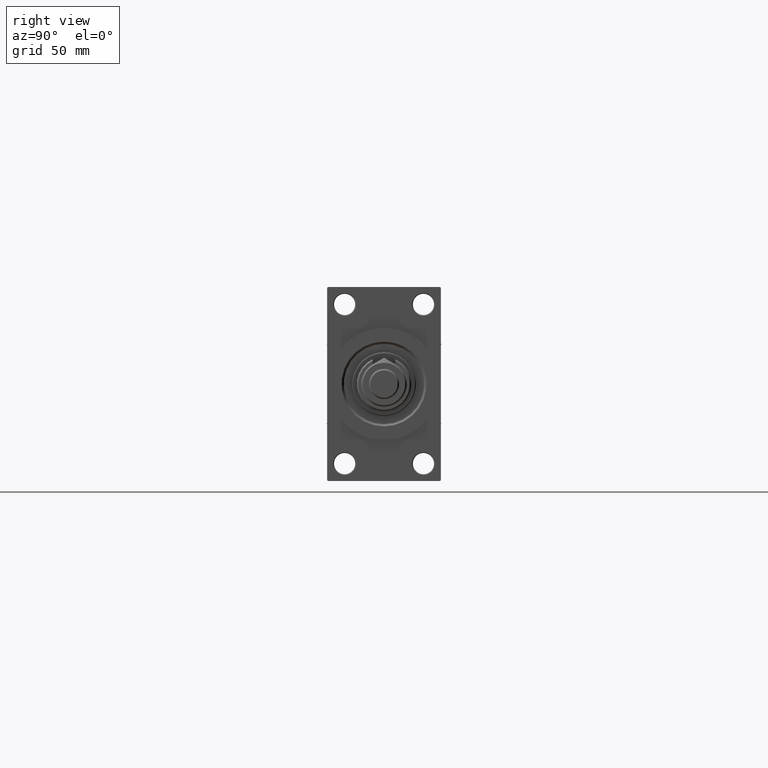
[diagram: clean part render]
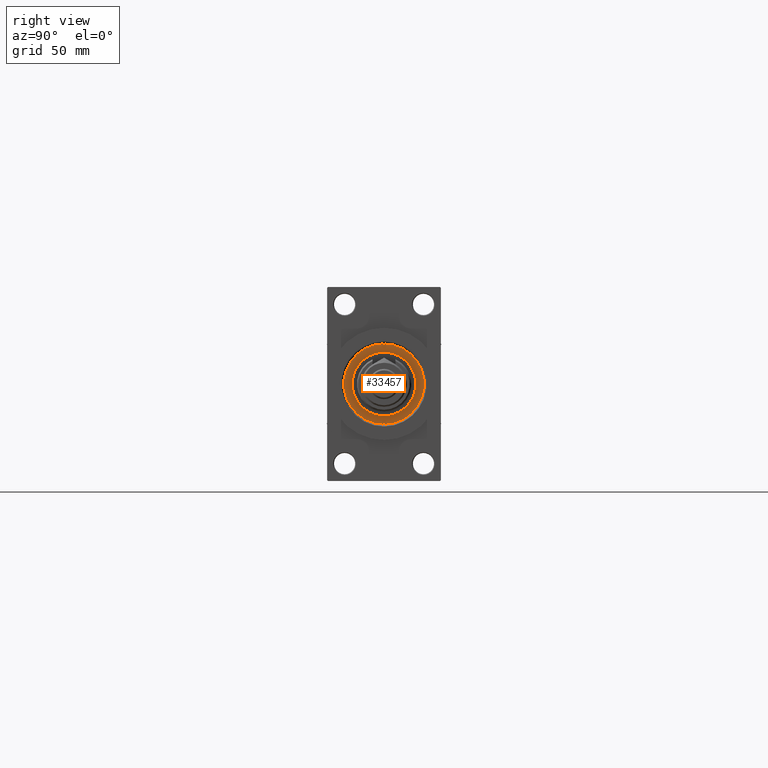
[diagram: same view with one face highlighted and labeled with its STEP entity id]
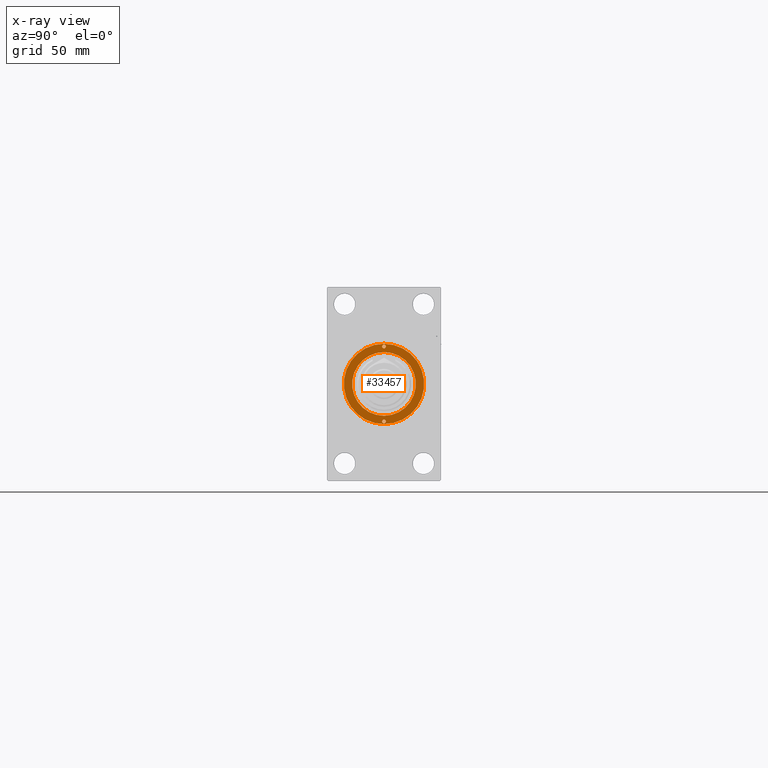
[diagram: x-ray of the same camera — body ghosted, the highlighted face saturated]
A machine part, right view. The second image highlights one B-rep face of the part: STEP entity #33457.
The next image is the same camera in x-ray: the body ghosted, the highlighted face saturated — about 0% of this face is hidden behind the body in this view.
In plain terms, the highlighted planar face has unit normal (1, -0, -0).
Its self-contained STEP definition (entity closure, byte-faithful):
#755 = CIRCLE ( 'NONE', #42118, 21.00000000000000000 ) ;
#839 = DIRECTION ( 'NONE',  ( 0.000000000000000000, 0.000000000000000000, 1.000000000000000000 ) ) ;
#905 = DIRECTION ( 'NONE',  ( 0.000000000000000000, 0.000000000000000000, 1.000000000000000000 ) ) ;
#968 = VERTEX_POINT ( 'NONE', #32764 ) ;
#1054 = CIRCLE ( 'NONE', #31890, 1.249999999999997558 ) ;
#1886 = CIRCLE ( 'NONE', #45725, 21.00000000000000000 ) ;
#3120 = CARTESIAN_POINT ( 'NONE',  ( 26.00000000000000000, 0.000000000000000000, 43.25999999999999801 ) ) ;
#3771 = CARTESIAN_POINT ( 'NONE',  ( 0.000000000000000000, 0.000000000000000000, 43.25999999999999801 ) ) ;
#3825 = ORIENTED_EDGE ( 'NONE', *, *, #22019, .T. ) ;
#5403 = FACE_BOUND ( 'NONE', #16978, .T. ) ;
#5556 = CARTESIAN_POINT ( 'NONE',  ( -21.00000000000000000, 0.000000000000000000, 43.25999999999999801 ) ) ;
#7224 = CARTESIAN_POINT ( 'NONE',  ( 23.50000000000000355, 1.530808498934188612E-16, 43.25999999999999801 ) ) ;
#7316 = EDGE_CURVE ( 'NONE', #49002, #41085, #1886, .T. ) ;
#7374 = AXIS2_PLACEMENT_3D ( 'NONE', #8716, #839, #16579 ) ;
#7772 = DIRECTION ( 'NONE',  ( 1.000000000000000000, 0.000000000000000000, 0.000000000000000000 ) ) ;
#7988 = CARTESIAN_POINT ( 'NONE',  ( 26.50000000000000355, 3.245314017740486554E-15, 43.25999999999999801 ) ) ;
#8145 = CARTESIAN_POINT ( 'NONE',  ( 21.00000000000000000, 2.571758278209441661E-15, 43.25999999999999801 ) ) ;
#8456 = EDGE_CURVE ( 'NONE', #25931, #14496, #45768, .T. ) ;
#8716 = CARTESIAN_POINT ( 'NONE',  ( 0.000000000000000000, 0.000000000000000000, 43.25999999999999801 ) ) ;
#9204 = FACE_BOUND ( 'NONE', #12640, .T. ) ;
#9691 = CARTESIAN_POINT ( 'NONE',  ( -24.75000000000000000, 0.000000000000000000, 43.25999999999999801 ) ) ;
#10490 = CARTESIAN_POINT ( 'NONE',  ( -26.00000000000000000, 1.530808498934188612E-16, 43.25999999999999801 ) ) ;
#11240 = AXIS2_PLACEMENT_3D ( 'NONE', #14856, #37994, #14352 ) ;
#12487 = ORIENTED_EDGE ( 'NONE', *, *, #41345, .F. ) ;
#12640 = EDGE_LOOP ( 'NONE', ( #35620, #20150 ) ) ;
#12705 = DIRECTION ( 'NONE',  ( 1.000000000000000000, 0.000000000000000000, 0.000000000000000000 ) ) ;
#13350 = ORIENTED_EDGE ( 'NONE', *, *, #7316, .F. ) ;
#14107 = ORIENTED_EDGE ( 'NONE', *, *, #36092, .T. ) ;
#14284 = DIRECTION ( 'NONE',  ( 1.000000000000000000, 0.000000000000000000, 0.000000000000000000 ) ) ;
#14352 = DIRECTION ( 'NONE',  ( 1.000000000000000000, 0.000000000000000000, 0.000000000000000000 ) ) ;
#14458 = VERTEX_POINT ( 'NONE', #10490 ) ;
#14496 = VERTEX_POINT ( 'NONE', #3120 ) ;
#14856 = CARTESIAN_POINT ( 'NONE',  ( 24.75000000000000000, 0.000000000000000000, 43.25999999999999801 ) ) ;
#15612 = EDGE_LOOP ( 'NONE', ( #14107, #3825 ) ) ;
#15695 = DIRECTION ( 'NONE',  ( 1.000000000000000000, 0.000000000000000000, 0.000000000000000000 ) ) ;
#16218 = EDGE_LOOP ( 'NONE', ( #25240, #12487 ) ) ;
#16389 = DIRECTION ( 'NONE',  ( 1.000000000000000000, 0.000000000000000000, 0.000000000000000000 ) ) ;
#16579 = DIRECTION ( 'NONE',  ( 1.000000000000000000, 0.000000000000000000, -0.000000000000000000 ) ) ;
#16978 = EDGE_LOOP ( 'NONE', ( #46804, #13350 ) ) ;
#17070 = FACE_BOUND ( 'NONE', #16218, .T. ) ;
#19186 = VERTEX_POINT ( 'NONE', #7988 ) ;
#19887 = PLANE ( 'NONE',  #7374 ) ;
#20150 = ORIENTED_EDGE ( 'NONE', *, *, #8456, .F. ) ;
#22019 = EDGE_CURVE ( 'NONE', #19186, #968, #50169, .T. ) ;
#22959 = EDGE_CURVE ( 'NONE', #14496, #25931, #46144, .T. ) ;
#23065 = CARTESIAN_POINT ( 'NONE',  ( 0.000000000000000000, 0.000000000000000000, 43.25999999999999801 ) ) ;
#23669 = EDGE_CURVE ( 'NONE', #41085, #49002, #755, .T. ) ;
#23891 = VERTEX_POINT ( 'NONE', #36010 ) ;
#25240 = ORIENTED_EDGE ( 'NONE', *, *, #35397, .F. ) ;
#25884 = DIRECTION ( 'NONE',  ( 0.000000000000000000, 0.000000000000000000, 1.000000000000000000 ) ) ;
#25931 = VERTEX_POINT ( 'NONE', #7224 ) ;
#26837 = DIRECTION ( 'NONE',  ( 0.000000000000000000, 0.000000000000000000, 1.000000000000000000 ) ) ;
#28262 = AXIS2_PLACEMENT_3D ( 'NONE', #44602, #905, #16389 ) ;
#28520 = AXIS2_PLACEMENT_3D ( 'NONE', #9691, #40713, #40458 ) ;
#30973 = DIRECTION ( 'NONE',  ( 0.000000000000000000, 0.000000000000000000, 1.000000000000000000 ) ) ;
#31890 = AXIS2_PLACEMENT_3D ( 'NONE', #45805, #49113, #14284 ) ;
#32298 = DIRECTION ( 'NONE',  ( -0.000000000000000000, -0.000000000000000000, 1.000000000000000000 ) ) ;
#32764 = CARTESIAN_POINT ( 'NONE',  ( -26.50000000000000355, 0.000000000000000000, 43.25999999999999801 ) ) ;
#33050 = CARTESIAN_POINT ( 'NONE',  ( 24.75000000000000000, 0.000000000000000000, 43.25999999999999801 ) ) ;
#33457 = ADVANCED_FACE ( 'NONE', ( #17070, #9204, #5403, #35409 ), #19887, .T. ) ;
#35054 = AXIS2_PLACEMENT_3D ( 'NONE', #46401, #26837, #7772 ) ;
#35397 = EDGE_CURVE ( 'NONE', #23891, #14458, #40704, .T. ) ;
#35409 = FACE_OUTER_BOUND ( 'NONE', #15612, .T. ) ;
#35620 = ORIENTED_EDGE ( 'NONE', *, *, #22959, .F. ) ;
#36010 = CARTESIAN_POINT ( 'NONE',  ( -23.50000000000000355, 0.000000000000000000, 43.25999999999999801 ) ) ;
#36092 = EDGE_CURVE ( 'NONE', #968, #19186, #36570, .T. ) ;
#36570 = CIRCLE ( 'NONE', #35054, 26.50000000000000355 ) ;
#37994 = DIRECTION ( 'NONE',  ( -0.000000000000000000, -0.000000000000000000, 1.000000000000000000 ) ) ;
#40458 = DIRECTION ( 'NONE',  ( 1.000000000000000000, 0.000000000000000000, 0.000000000000000000 ) ) ;
#40704 = CIRCLE ( 'NONE', #28520, 1.249999999999997558 ) ;
#40713 = DIRECTION ( 'NONE',  ( -0.000000000000000000, -0.000000000000000000, 1.000000000000000000 ) ) ;
#41085 = VERTEX_POINT ( 'NONE', #5556 ) ;
#41345 = EDGE_CURVE ( 'NONE', #14458, #23891, #1054, .T. ) ;
#41379 = DIRECTION ( 'NONE',  ( 1.000000000000000000, 0.000000000000000000, 0.000000000000000000 ) ) ;
#42118 = AXIS2_PLACEMENT_3D ( 'NONE', #23065, #25884, #41379 ) ;
#44602 = CARTESIAN_POINT ( 'NONE',  ( 0.000000000000000000, 0.000000000000000000, 43.25999999999999801 ) ) ;
#45725 = AXIS2_PLACEMENT_3D ( 'NONE', #3771, #30973, #15695 ) ;
#45768 = CIRCLE ( 'NONE', #47375, 1.249999999999997558 ) ;
#45805 = CARTESIAN_POINT ( 'NONE',  ( -24.75000000000000000, 0.000000000000000000, 43.25999999999999801 ) ) ;
#46144 = CIRCLE ( 'NONE', #11240, 1.249999999999997558 ) ;
#46401 = CARTESIAN_POINT ( 'NONE',  ( 0.000000000000000000, 0.000000000000000000, 43.25999999999999801 ) ) ;
#46804 = ORIENTED_EDGE ( 'NONE', *, *, #23669, .F. ) ;
#47375 = AXIS2_PLACEMENT_3D ( 'NONE', #33050, #32298, #12705 ) ;
#49002 = VERTEX_POINT ( 'NONE', #8145 ) ;
#49113 = DIRECTION ( 'NONE',  ( -0.000000000000000000, -0.000000000000000000, 1.000000000000000000 ) ) ;
#50169 = CIRCLE ( 'NONE', #28262, 26.50000000000000355 ) ;